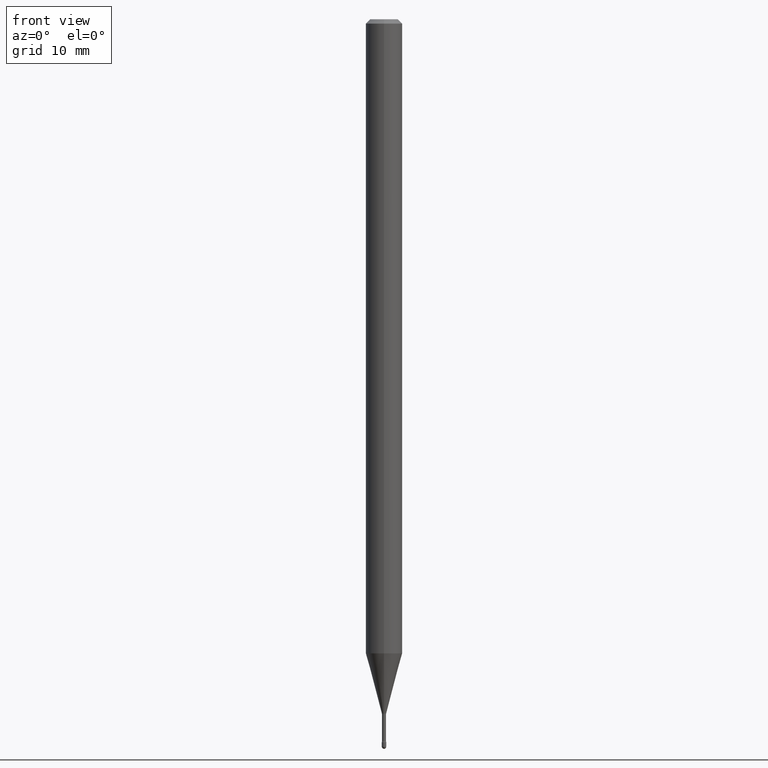
[diagram: clean part render]
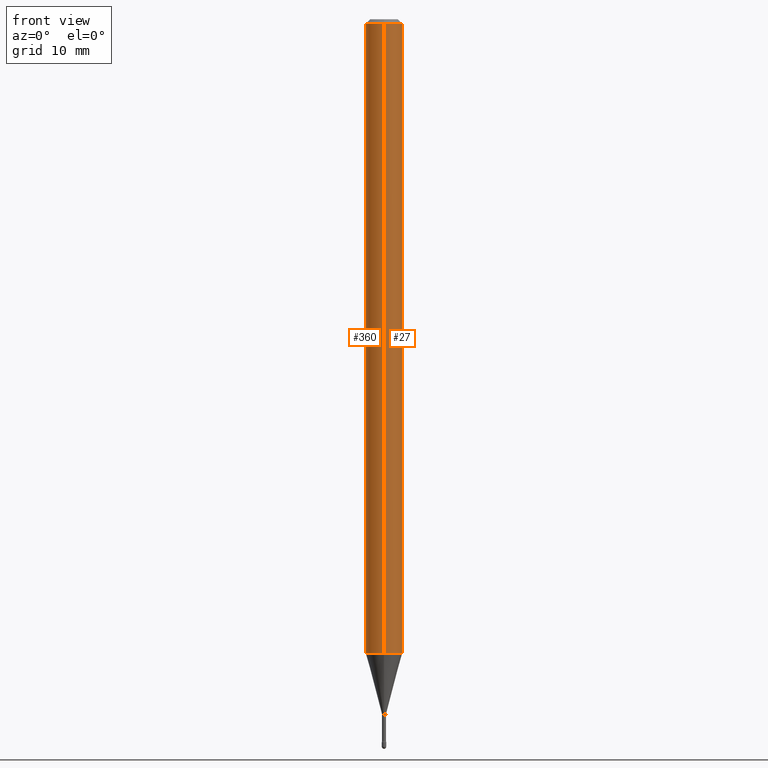
[diagram: same view with one multi-face feature highlighted, each face labeled with its STEP entity id]
A machine part, front view. The highlighted faces form ONE feature: a constant-radius fillet chain: 2 tangent blend faces with common blend radius 1.5875 mm. The faces share edges in the B-rep.
Their STEP definitions:
[1] entity #360 (Cylinder):
#1 = VERTEX_POINT ( 'NONE', #141 ) ;
#12 = CARTESIAN_POINT ( 'NONE',  ( -4.364351673553916201E-16, -0.06250000000000000000, 6.962889652497336499E-16 ) ) ;
#44 = VERTEX_POINT ( 'NONE', #128 ) ;
#47 = CARTESIAN_POINT ( 'NONE',  ( 3.668237017753114858E-31, -5.237173592603730529E-17, -0.01500000000000008271 ) ) ;
#79 = AXIS2_PLACEMENT_3D ( 'NONE', #423, #344, #171 ) ;
#95 = CARTESIAN_POINT ( 'NONE',  ( -4.364351673553912750E-16, -0.06250000000000005551, -0.01499999999999986587 ) ) ;
#107 = DIRECTION ( 'NONE',  ( -2.445491345168729704E-29, 3.491449061735800993E-15, 1.000000000000000000 ) ) ;
#123 = VECTOR ( 'NONE', #191, 39.37007874015748143 ) ;
#124 = CARTESIAN_POINT ( 'NONE',  ( 5.314194000194058703E-29, -7.587120556576491989E-15, -2.173057782720305919 ) ) ;
#128 = CARTESIAN_POINT ( 'NONE',  ( -4.364351673553386185E-16, -0.06250000000000759115, -2.173057782720305919 ) ) ;
#129 = ORIENTED_EDGE ( 'NONE', *, *, #367, .F. ) ;
#141 = CARTESIAN_POINT ( 'NONE',  ( 4.440892098501156671E-16, 0.06249999999999240885, -2.173057782720306363 ) ) ;
#153 = EDGE_CURVE ( 'NONE', #1, #44, #192, .T. ) ;
#171 = DIRECTION ( 'NONE',  ( -6.982962677686265922E-15, -1.000000000000000000, 3.491449061735801387E-15 ) ) ;
#176 = CYLINDRICAL_SURFACE ( 'NONE', #79, 0.06250000000000000000 ) ;
#191 = DIRECTION ( 'NONE',  ( -2.445491345168729704E-29, 3.491449061735800993E-15, 1.000000000000000000 ) ) ;
#192 = CIRCLE ( 'NONE', #336, 0.06250000000000000000 ) ;
#226 = LINE ( 'NONE', #12, #123 ) ;
#253 = VECTOR ( 'NONE', #107, 39.37007874015748143 ) ;
#259 = ORIENTED_EDGE ( 'NONE', *, *, #322, .T. ) ;
#267 = CARTESIAN_POINT ( 'NONE',  ( 4.440892098500625669E-16, 0.06250000000000000000, 2.598578325327585258E-16 ) ) ;
#277 = EDGE_CURVE ( 'NONE', #1, #566, #440, .T. ) ;
#322 = EDGE_CURVE ( 'NONE', #44, #370, #226, .T. ) ;
#334 = EDGE_LOOP ( 'NONE', ( #492, #454, #259, #129 ) ) ;
#336 = AXIS2_PLACEMENT_3D ( 'NONE', #124, #418, #337 ) ;
#337 = DIRECTION ( 'NONE',  ( -6.982962677686265922E-15, -1.000000000000000000, 4.370956789862821150E-15 ) ) ;
#344 = DIRECTION ( 'NONE',  ( -2.445491345168729704E-29, 3.491449061735800993E-15, 1.000000000000000000 ) ) ;
#349 = CARTESIAN_POINT ( 'NONE',  ( 4.440892098501161601E-16, 0.06249999999999995143, -0.01500000000000030129 ) ) ;
#360 = ADVANCED_FACE ( 'NONE', ( #562 ), #176, .T. ) ;
#367 = EDGE_CURVE ( 'NONE', #566, #370, #522, .T. ) ;
#370 = VERTEX_POINT ( 'NONE', #95 ) ;
#402 = AXIS2_PLACEMENT_3D ( 'NONE', #47, #525, #471 ) ;
#418 = DIRECTION ( 'NONE',  ( -2.445491345168729704E-29, 3.491449061735800993E-15, 1.000000000000000000 ) ) ;
#423 = CARTESIAN_POINT ( 'NONE',  ( -1.169113584055446105E-44, 1.669184350826100908E-30, 4.780733988912460139E-16 ) ) ;
#440 = LINE ( 'NONE', #267, #253 ) ;
#454 = ORIENTED_EDGE ( 'NONE', *, *, #153, .T. ) ;
#471 = DIRECTION ( 'NONE',  ( -6.982962677686265922E-15, -1.000000000000000000, 3.483106191921935554E-15 ) ) ;
#492 = ORIENTED_EDGE ( 'NONE', *, *, #277, .F. ) ;
#522 = CIRCLE ( 'NONE', #402, 0.06250000000000000000 ) ;
#525 = DIRECTION ( 'NONE',  ( -2.445491345168729704E-29, 3.491449061735800993E-15, 1.000000000000000000 ) ) ;
#562 = FACE_OUTER_BOUND ( 'NONE', #334, .T. ) ;
#566 = VERTEX_POINT ( 'NONE', #349 ) ;
[2] entity #27 (Cylinder):
#1 = VERTEX_POINT ( 'NONE', #141 ) ;
#12 = CARTESIAN_POINT ( 'NONE',  ( -4.364351673553916201E-16, -0.06250000000000000000, 6.962889652497336499E-16 ) ) ;
#27 = ADVANCED_FACE ( 'NONE', ( #538 ), #220, .T. ) ;
#29 = CIRCLE ( 'NONE', #310, 0.06250000000000000000 ) ;
#30 = DIRECTION ( 'NONE',  ( -6.982962677686265922E-15, -1.000000000000000000, 3.483106191921935554E-15 ) ) ;
#44 = VERTEX_POINT ( 'NONE', #128 ) ;
#95 = CARTESIAN_POINT ( 'NONE',  ( -4.364351673553912750E-16, -0.06250000000000005551, -0.01499999999999986587 ) ) ;
#107 = DIRECTION ( 'NONE',  ( -2.445491345168729704E-29, 3.491449061735800993E-15, 1.000000000000000000 ) ) ;
#111 = EDGE_CURVE ( 'NONE', #370, #566, #29, .T. ) ;
#123 = VECTOR ( 'NONE', #191, 39.37007874015748143 ) ;
#126 = ORIENTED_EDGE ( 'NONE', *, *, #277, .T. ) ;
#128 = CARTESIAN_POINT ( 'NONE',  ( -4.364351673553386185E-16, -0.06250000000000759115, -2.173057782720305919 ) ) ;
#141 = CARTESIAN_POINT ( 'NONE',  ( 4.440892098501156671E-16, 0.06249999999999240885, -2.173057782720306363 ) ) ;
#191 = DIRECTION ( 'NONE',  ( -2.445491345168729704E-29, 3.491449061735800993E-15, 1.000000000000000000 ) ) ;
#196 = ORIENTED_EDGE ( 'NONE', *, *, #322, .F. ) ;
#199 = CARTESIAN_POINT ( 'NONE',  ( -1.169113584055446105E-44, 1.669184350826100908E-30, 4.780733988912460139E-16 ) ) ;
#220 = CYLINDRICAL_SURFACE ( 'NONE', #560, 0.06250000000000000000 ) ;
#226 = LINE ( 'NONE', #12, #123 ) ;
#253 = VECTOR ( 'NONE', #107, 39.37007874015748143 ) ;
#267 = CARTESIAN_POINT ( 'NONE',  ( 4.440892098500625669E-16, 0.06250000000000000000, 2.598578325327585258E-16 ) ) ;
#272 = CARTESIAN_POINT ( 'NONE',  ( 5.314194000194058703E-29, -7.587120556576491989E-15, -2.173057782720305919 ) ) ;
#277 = EDGE_CURVE ( 'NONE', #1, #566, #440, .T. ) ;
#288 = DIRECTION ( 'NONE',  ( -2.445491345168729704E-29, 3.491449061735800993E-15, 1.000000000000000000 ) ) ;
#296 = EDGE_LOOP ( 'NONE', ( #447, #126, #499, #196 ) ) ;
#303 = CIRCLE ( 'NONE', #368, 0.06250000000000000000 ) ;
#310 = AXIS2_PLACEMENT_3D ( 'NONE', #329, #288, #30 ) ;
#322 = EDGE_CURVE ( 'NONE', #44, #370, #226, .T. ) ;
#329 = CARTESIAN_POINT ( 'NONE',  ( 3.668237017753114858E-31, -5.237173592603730529E-17, -0.01500000000000008271 ) ) ;
#349 = CARTESIAN_POINT ( 'NONE',  ( 4.440892098501161601E-16, 0.06249999999999995143, -0.01500000000000030129 ) ) ;
#352 = EDGE_CURVE ( 'NONE', #44, #1, #303, .T. ) ;
#358 = DIRECTION ( 'NONE',  ( -6.982962677686265922E-15, -1.000000000000000000, 4.370956789862821150E-15 ) ) ;
#368 = AXIS2_PLACEMENT_3D ( 'NONE', #272, #443, #358 ) ;
#370 = VERTEX_POINT ( 'NONE', #95 ) ;
#440 = LINE ( 'NONE', #267, #253 ) ;
#443 = DIRECTION ( 'NONE',  ( -2.445491345168729704E-29, 3.491449061735800993E-15, 1.000000000000000000 ) ) ;
#447 = ORIENTED_EDGE ( 'NONE', *, *, #352, .T. ) ;
#498 = DIRECTION ( 'NONE',  ( -2.445491345168729704E-29, 3.491449061735800993E-15, 1.000000000000000000 ) ) ;
#499 = ORIENTED_EDGE ( 'NONE', *, *, #111, .F. ) ;
#538 = FACE_OUTER_BOUND ( 'NONE', #296, .T. ) ;
#546 = DIRECTION ( 'NONE',  ( -6.982962677686265922E-15, -1.000000000000000000, 3.491449061735801387E-15 ) ) ;
#560 = AXIS2_PLACEMENT_3D ( 'NONE', #199, #498, #546 ) ;
#566 = VERTEX_POINT ( 'NONE', #349 ) ;